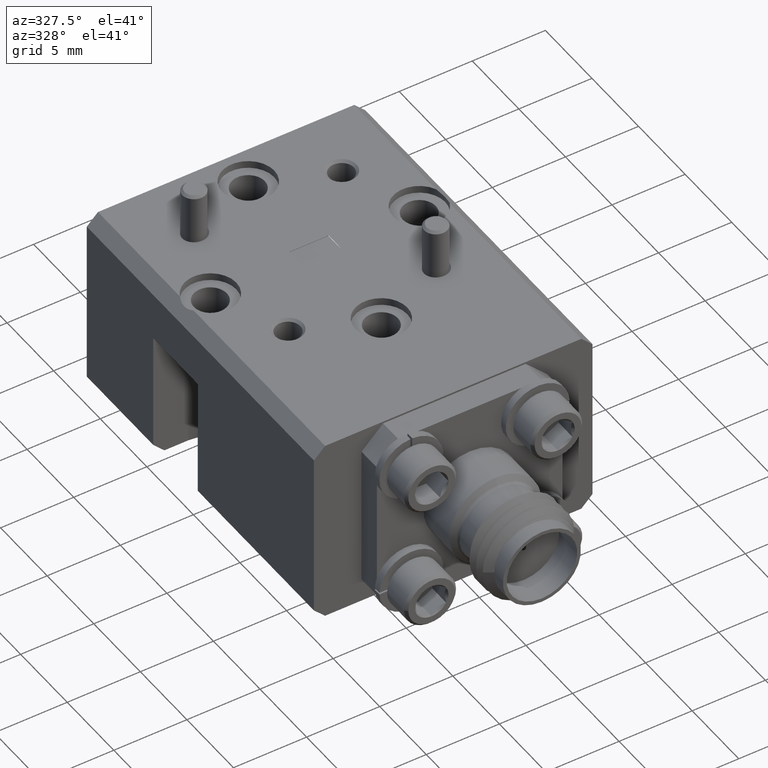
[diagram: clean part render]
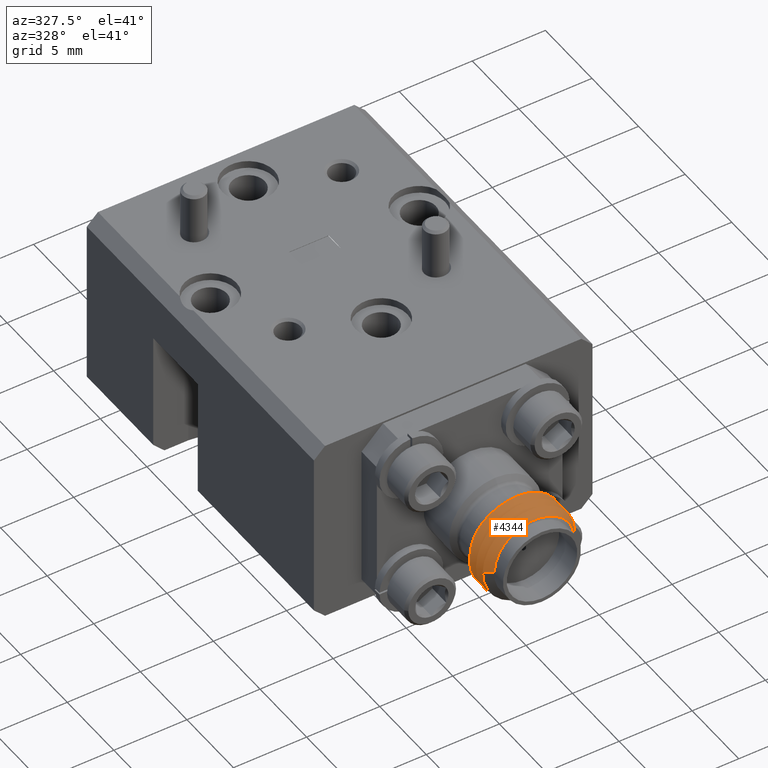
[diagram: same view with one face highlighted and labeled with its STEP entity id]
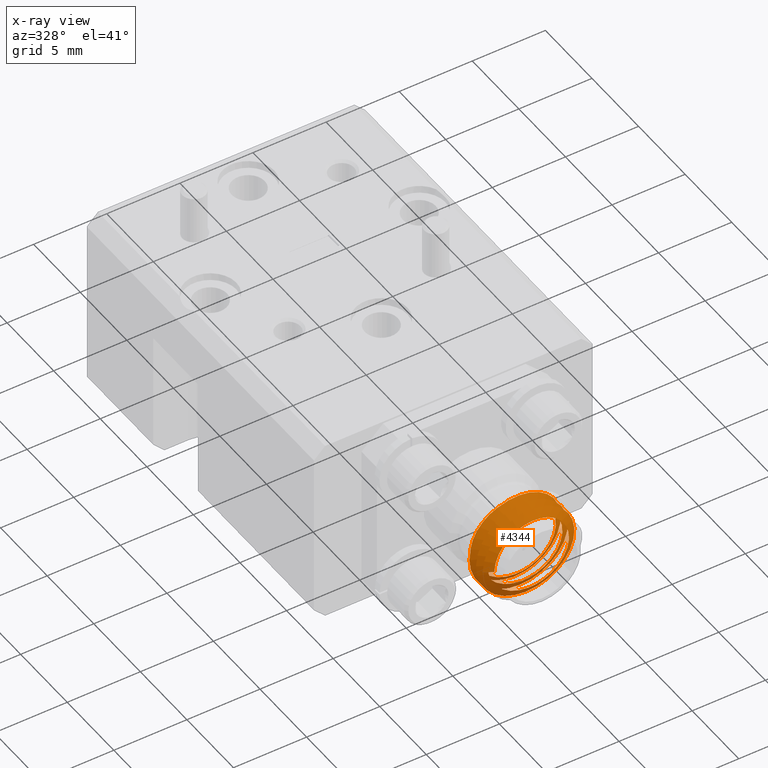
[diagram: x-ray of the same camera — body ghosted, the highlighted face saturated]
A machine part, auxiliary view. The second image highlights one B-rep face of the part: STEP entity #4344.
The next image is the same camera in x-ray: the body ghosted, the highlighted face saturated — about 0% of this face is hidden behind the body in this view.
In plain terms, the highlighted face is a freeform B-spline surface patch.
Its self-contained STEP definition (entity closure, byte-faithful):
#36 = CARTESIAN_POINT ( 'NONE',  ( 0.03312919276062768800, -0.7691203576769958300, 0.1296384106458394500 ) ) ;
#54 = CARTESIAN_POINT ( 'NONE',  ( 0.1248571066239594400, -0.7372423412601347700, 0.02627076726674293400 ) ) ;
#86 = EDGE_CURVE ( 'NONE', #9423, #968, #976, .T. ) ;
#98 =( BOUNDED_CURVE ( )  B_SPLINE_CURVE ( 2, ( #634, #1420, #503, #2881, #5298, #5195, #9181, #7711, #9909 ),
 .UNSPECIFIED., .F., .F. ) 
 B_SPLINE_CURVE_WITH_KNOTS ( ( 3, 2, 2, 2, 3 ),
 ( 0.2248554726565971900, 0.2333333333333333400, 0.2666666666666666600, 0.2999999999999999900, 0.3248554726565971400 ),
 .UNSPECIFIED. ) 
 CURVE ( )  GEOMETRIC_REPRESENTATION_ITEM ( )  RATIONAL_B_SPLINE_CURVE ( ( 0.9491836739122823100, 0.9659254611718747200, 1.000000000000000000, 0.8660254037844387100, 1.000000000000000000, 0.8660254037844387100, 1.000000000000000000, 0.9000999426125641000, 0.9491836739122823100 ) ) 
 REPRESENTATION_ITEM ( '' )  );
#184 = EDGE_CURVE ( 'NONE', #1070, #450, #8906, .T. ) ;
#225 =( BOUNDED_CURVE ( )  B_SPLINE_CURVE ( 2, ( #9086, #3608, #6780, #7443, #9763, #5838, #4363, #9875, #5161 ),
 .UNSPECIFIED., .F., .F. ) 
 B_SPLINE_CURVE_WITH_KNOTS ( ( 3, 2, 2, 2, 3 ),
 ( 0.3248554726565971400, 0.3333333333333333100, 0.3666666666666666400, 0.4000000000000000200, 0.4248554726565971800 ),
 .UNSPECIFIED. ) 
 CURVE ( )  GEOMETRIC_REPRESENTATION_ITEM ( )  RATIONAL_B_SPLINE_CURVE ( ( 0.9491836739122823100, 0.9659254611718746100, 1.000000000000000000, 0.8660254037844387100, 1.000000000000000000, 0.8660254037844387100, 1.000000000000000000, 0.9000999426125641000, 0.9491836739122823100 ) ) 
 REPRESENTATION_ITEM ( '' )  );
#356 = ORIENTED_EDGE ( 'NONE', *, *, #184, .T. ) ;
#378 = CARTESIAN_POINT ( 'NONE',  ( -0.02939350811666438200, -0.7328418619769214700, -0.1092929413743848200 ) ) ;
#444 = CARTESIAN_POINT ( 'NONE',  ( -0.1138557648195761700, -0.7298955529993043100, 0.008651169013799793100 ) ) ;
#450 = VERTEX_POINT ( 'NONE', #8827 ) ;
#485 = CARTESIAN_POINT ( 'NONE',  ( -0.1171121924249693000, -0.8171216360905792000, 0.03738047777547255000 ) ) ;
#503 = CARTESIAN_POINT ( 'NONE',  ( 0.02717629093645239400, -0.8101771916461348900, 0.1074221337329150400 ) ) ;
#514 = CARTESIAN_POINT ( 'NONE',  ( 0.07424599885050108000, -0.7453623768313200100, -0.06824642519806194100 ) ) ;
#541 =( BOUNDED_CURVE ( )  B_SPLINE_CURVE ( 2, ( #7886, #6213, #3917, #2295, #7815 ),
 .UNSPECIFIED., .F., .F. ) 
 B_SPLINE_CURVE_WITH_KNOTS ( ( 3, 2, 3 ),
 ( 0.1767275469719470900, 0.2000000000000000100, 0.2248554726565971900 ),
 .UNSPECIFIED. ) 
 CURVE ( )  GEOMETRIC_REPRESENTATION_ITEM ( )  RATIONAL_B_SPLINE_CURVE ( ( 0.9435358094628345500, 0.9064624750786298700, 1.000000000000000000, 0.9000999426125639900, 0.9491836739122823100 ) ) 
 REPRESENTATION_ITEM ( '' )  );
#554 = CARTESIAN_POINT ( 'NONE',  ( -0.1014222897869530400, -0.8194364509053940800, -0.02117570853485313200 ) ) ;
#614 = CARTESIAN_POINT ( 'NONE',  ( -0.07424599885050080200, -0.7592512657202089600, 0.08024642519806196600 ) ) ;
#634 = CARTESIAN_POINT ( 'NONE',  ( 7.420108249055864700E-017, -0.8112937829805770800, 0.1110000000000000000 ) ) ;
#646 = CARTESIAN_POINT ( 'NONE',  ( -0.1236386008831427800, -0.7783796169362549000, -0.02712848278534478500 ) ) ;
#704 = FACE_OUTER_BOUND ( 'NONE', #7955, .T. ) ;
#718 = CARTESIAN_POINT ( 'NONE',  ( 0.03312919276062764600, -0.8246759132325511800, 0.1296384106458393100 ) ) ;
#736 = CARTESIAN_POINT ( 'NONE',  ( 0.1014222897869533200, -0.7499920064609496600, 0.03317570853485309100 ) ) ;
#741 = CARTESIAN_POINT ( 'NONE',  ( 0.07418421583254591900, -0.7348550753825000600, -0.09178895809404331900 ) ) ;
#745 = CARTESIAN_POINT ( 'NONE',  ( 0.07424599885050108000, -0.7731401546090978000, -0.06824642519806194100 ) ) ;
#753 = CARTESIAN_POINT ( 'NONE',  ( -0.1236386008831427800, -0.7506018391584771100, -0.02712848278534478500 ) ) ;
#774 = CARTESIAN_POINT ( 'NONE',  ( 0.08303529918375010500, -0.7350406885612260600, -0.08484023021629784300 ) ) ;
#813 = CARTESIAN_POINT ( 'NONE',  ( 0.1157437311068600800, -0.7360297553188960300, -0.03957419461717032900 ) ) ;
#828 = CARTESIAN_POINT ( 'NONE',  ( 0.1054730156802199800, -0.7381850454237706100, 0.07852201709357020700 ) ) ;
#968 = VERTEX_POINT ( 'NONE', #1564 ) ;
#976 =( BOUNDED_CURVE ( )  B_SPLINE_CURVE ( 1, ( #9787, #8943 ),
 .UNSPECIFIED., .F., .T. ) 
 B_SPLINE_CURVE_WITH_KNOTS ( ( 2, 2 ),
 ( 0.0000000000000000000, 0.0006745760545211595900 ),
 .UNSPECIFIED. ) 
 CURVE ( )  GEOMETRIC_REPRESENTATION_ITEM ( )  RATIONAL_B_SPLINE_CURVE ( ( 0.9435358094628352200, 0.9435358094628352200 ) ) 
 REPRESENTATION_ITEM ( '' )  );
#1070 = VERTEX_POINT ( 'NONE', #4911 ) ;
#1086 = CARTESIAN_POINT ( 'NONE',  ( -0.1018430765483656100, -0.7310001791428224500, -0.04910181119408804600 ) ) ;
#1142 = CARTESIAN_POINT ( 'NONE',  ( 0.006198600040931802500, -0.7263044659087181100, 0.1134222326565573300 ) ) ;
#1185 = CARTESIAN_POINT ( 'NONE',  ( -2.698221181474860900E-017, -0.7557382274250215000, 0.1109999999999999900 ) ) ;
#1187 = CARTESIAN_POINT ( 'NONE',  ( -0.07553190332919998400, -0.7281169852504061300, 0.08708193823826923500 ) ) ;
#1191 = ORIENTED_EDGE ( 'NONE', *, *, #7850, .F. ) ;
#1213 = CARTESIAN_POINT ( 'NONE',  ( 0.05834331054671429400, -0.7251794569405314300, 0.09409086156688327400 ) ) ;
#1223 = CARTESIAN_POINT ( 'NONE',  ( -0.09086058015134872200, -0.7285369642963722700, 0.07068819780211663100 ) ) ;
#1227 = CARTESIAN_POINT ( 'NONE',  ( -0.03137980527603231900, -0.7569364509053940800, 0.1231123726206513300 ) ) ;
#1240 = CARTESIAN_POINT ( 'NONE',  ( -2.248517651229049400E-017, -0.7696271163139102300, -0.09899999999999997700 ) ) ;
#1263 = CARTESIAN_POINT ( 'NONE',  ( -0.03137980527603231900, -0.8402697842387274500, 0.1231123726206513300 ) ) ;
#1299 = CARTESIAN_POINT ( 'NONE',  ( 0.02717629093645239400, -0.8101771916461348900, 0.1074221337329150400 ) ) ;
#1301 = ORIENTED_EDGE ( 'NONE', *, *, #6525, .T. ) ;
#1313 = CARTESIAN_POINT ( 'NONE',  ( 0.08573238714893710600, -0.7523068212757644300, 0.09173189484517872700 ) ) ;
#1316 = CARTESIAN_POINT ( 'NONE',  ( -2.698221181474860900E-017, -0.7835160052027991800, 0.1109999999999999900 ) ) ;
#1331 = CARTESIAN_POINT ( 'NONE',  ( 0.1064886228565151100, -0.7214667656098323600, 0.01426767895839082400 ) ) ;
#1366 = CARTESIAN_POINT ( 'NONE',  ( -0.02717629093645206700, -0.7962883027572460500, -0.09542213373291502700 ) ) ;
#1386 = EDGE_CURVE ( 'NONE', #8689, #5674, #9345, .T. ) ;
#1400 = CARTESIAN_POINT ( 'NONE',  ( 0.1236386008831430700, -0.8200462836029215300, 0.03912848278534471900 ) ) ;
#1420 = CARTESIAN_POINT ( 'NONE',  ( 0.01382366559595591500, -0.8107050419803288900, 0.1110000000000000000 ) ) ;
#1436 = CARTESIAN_POINT ( 'NONE',  ( -0.1427653393371055000, -0.7760648021214400200, 0.04425429671676652000 ) ) ;
#1465 = CARTESIAN_POINT ( 'NONE',  ( 0.1272702954421694200, -0.7073349570124831700, -0.007648146323326748800 ) ) ;
#1497 = CARTESIAN_POINT ( 'NONE',  ( -0.1045118624291801500, -0.7529166539732918800, -0.09851126228745596400 ) ) ;
#1513 = EDGE_CURVE ( 'NONE', #450, #4178, #4920, .T. ) ;
#1529 = CARTESIAN_POINT ( 'NONE',  ( 0.03312919276062764600, -0.7135648021214400200, 0.1296384106458393100 ) ) ;
#1536 = CARTESIAN_POINT ( 'NONE',  ( -0.1045118624291802900, -0.7529166539732921000, -0.09851126228745610300 ) ) ;
#1564 = CARTESIAN_POINT ( 'NONE',  ( -0.1278387922965798000, -0.8048149545762241000, 0.01242208565435611400 ) ) ;
#1568 = CARTESIAN_POINT ( 'NONE',  ( -0.03825347690792520200, -0.7714351724918104800, 0.1487655590042227800 ) ) ;
#1734 = ORIENTED_EDGE ( 'NONE', *, *, #4513, .F. ) ;
#1853 = CARTESIAN_POINT ( 'NONE',  ( -0.01382366559595572500, -0.7690383753136620400, -0.09899999999999993500 ) ) ;
#1857 = CARTESIAN_POINT ( 'NONE',  ( 0.01382366559595586200, -0.7273717086469953000, 0.1109999999999999900 ) ) ;
#1894 = CARTESIAN_POINT ( 'NONE',  ( -0.1014222897869530400, -0.7638808953498386100, -0.02117570853485312800 ) ) ;
#1900 =( BOUNDED_CURVE ( )  B_SPLINE_CURVE ( 2, ( #3070, #6201, #8561, #6267, #4619, #7003, #9407, #2281, #6339, #4654, #8592, #3864, #3171, #10180, #3829, #1568, #36, #2246, #5452, #5545, #5516, #7072, #6231, #1536, #7033, #2313, #2344, #6304, #3106, #7869, #828 ),
 .UNSPECIFIED., .F., .T. ) 
 B_SPLINE_CURVE_WITH_KNOTS ( ( 3, 2, 2, 2, 2, 2, 2, 2, 2, 2, 2, 2, 2, 2, 2, 3 ),
 ( 0.2011687592148475600, 0.2276597651715039400, 0.2656030593667546600, 0.3035463535620053800, 0.3414896477572561000, 0.3794329419525067600, 0.4173762361477574800, 0.4553195303430082600, 0.4932628245382589800, 0.5312061187335097600, 0.5691494129287604200, 0.6070927071240110900, 0.6450360013192617500, 0.6829792955145125300, 0.7209225897097633100, 0.7463925776211358700 ),
 .UNSPECIFIED. ) 
 CURVE ( )  GEOMETRIC_REPRESENTATION_ITEM ( )  RATIONAL_B_SPLINE_CURVE ( ( 0.9435358094628330000, 0.9064624750786318700, 1.000000000000000000, 0.8660254037844387100, 1.000000000000000000, 0.8660254037844387100, 1.000000000000000000, 0.8660254037844387100, 1.000000000000000000, 0.8660254037844387100, 1.000000000000000000, 0.8660254037844387100, 1.000000000000000000, 0.8660254037844387100, 1.000000000000000000, 0.8660254037844387100, 1.000000000000000000, 0.8660254037844387100, 1.000000000000000000, 0.8660254037844387100, 1.000000000000000000, 0.8660254037844387100, 1.000000000000000000, 0.8660254037844387100, 1.000000000000000000, 0.8660254037844387100, 1.000000000000000000, 0.8660254037844387100, 1.000000000000000000, 0.9100676043444722000, 0.9408720650304152100 ) ) 
 REPRESENTATION_ITEM ( '' )  );
#1919 = CARTESIAN_POINT ( 'NONE',  ( 0.04212905255298550500, -0.7255736212046120000, 0.1036356924667437800 ) ) ;
#1928 = CARTESIAN_POINT ( 'NONE',  ( 5.630827842917322900E-013, -0.7333776638842842700, -0.1136733709222306800 ) ) ;
#1953 = EDGE_CURVE ( 'NONE', #8023, #8689, #225, .T. ) ;
#1962 = CARTESIAN_POINT ( 'NONE',  ( -0.05062318909267560900, -0.7275330866596323400, 0.1034348513021584200 ) ) ;
#2000 = CARTESIAN_POINT ( 'NONE',  ( 0.08573238714893709200, -0.7523068212757644300, 0.09173189484517871300 ) ) ;
#2015 = EDGE_CURVE ( 'NONE', #9423, #8202, #541, .T. ) ;
#2035 = CARTESIAN_POINT ( 'NONE',  ( 0.03137980527603263800, -0.7986031175720608200, -0.1111123726206513000 ) ) ;
#2065 = CARTESIAN_POINT ( 'NONE',  ( -0.08573238714893680100, -0.7384179323868755900, -0.07973189484517873000 ) ) ;
#2140 = CARTESIAN_POINT ( 'NONE',  ( 0.02717629093645239400, -0.7823994138683571000, 0.1074221337329150400 ) ) ;
#2155 = B_SPLINE_CURVE_WITH_KNOTS ( 'NONE', 3,
 ( #2814, #1142, #9834, #5907, #2744, #1919, #6745, #1213, #5942, #6711 ),
 .UNSPECIFIED., .F., .F.,
 ( 4, 2, 2, 2, 4 ),
 ( 0.01584325104450802500, 0.01631522288888697200, 0.01678719473326591900, 0.01725916657764486900, 0.01773113842202381600 ),
 .UNSPECIFIED. ) ;
#2170 = CARTESIAN_POINT ( 'NONE',  ( 0.1427653393371057500, -0.7621759132325511800, -0.03225429671676653700 ) ) ;
#2197 = CARTESIAN_POINT ( 'NONE',  ( -0.1171121924249693000, -0.7337883027572459400, 0.03738047777547255000 ) ) ;
#2200 = CARTESIAN_POINT ( 'NONE',  ( -0.1427653393371055000, -0.7482870243436623400, 0.04425429671676652000 ) ) ;
#2246 = CARTESIAN_POINT ( 'NONE',  ( 0.1045118624291805800, -0.7668055428621809400, 0.1105112622874561300 ) ) ;
#2262 = CARTESIAN_POINT ( 'NONE',  ( 0.04413047910349584400, -0.7342327314604387700, -0.1069712945133895200 ) ) ;
#2275 = CARTESIAN_POINT ( 'NONE',  ( 0.03312919276062764600, -0.7691203576769956000, 0.1296384106458393100 ) ) ;
#2281 = CARTESIAN_POINT ( 'NONE',  ( 0.1427653393371059200, -0.7899536910103292000, -0.03225429671676657800 ) ) ;
#2295 = CARTESIAN_POINT ( 'NONE',  ( -0.04349224745033781300, -0.8131460897431511700, 0.1109999999999999700 ) ) ;
#2306 = CARTESIAN_POINT ( 'NONE',  ( -0.09050940812251530300, -0.7737499873066252500, 0.09650992786049460100 ) ) ;
#2313 = CARTESIAN_POINT ( 'NONE',  ( -0.1427653393371056700, -0.7482870243436624500, 0.04425429671676656800 ) ) ;
#2338 =( BOUNDED_CURVE ( )  B_SPLINE_CURVE ( 2, ( #2687, #1857, #5097, #2756, #4989 ),
 .UNSPECIFIED., .F., .T. ) 
 B_SPLINE_CURVE_WITH_KNOTS ( ( 3, 2, 3 ),
 ( 0.8248554726565972000, 0.8333333333333333700, 0.8474635842303774900 ),
 .UNSPECIFIED. ) 
 CURVE ( )  GEOMETRIC_REPRESENTATION_ITEM ( )  RATIONAL_B_SPLINE_CURVE ( ( 0.9491836739122823100, 0.9659254611718746100, 1.000000000000000000, 0.9432071602493181700, 0.9345641449886015200 ) ) 
 REPRESENTATION_ITEM ( '' )  );
#2344 = CARTESIAN_POINT ( 'NONE',  ( -0.09050940812251541400, -0.7459722095288475700, 0.09650992786049471300 ) ) ;
#2362 = CARTESIAN_POINT ( 'NONE',  ( 0.1254668339449944700, -0.7371481022586738900, 0.02071807716964917100 ) ) ;
#2398 = CARTESIAN_POINT ( 'NONE',  ( 0.1197137497613994900, -0.7362375630011227500, -0.02909731937619747200 ) ) ;
#2517 = CARTESIAN_POINT ( 'NONE',  ( -0.1048677593057881900, -0.8180940107675855900, 0.01126811713833744000 ) ) ;
#2616 = CARTESIAN_POINT ( 'NONE',  ( -0.03653210739300280500, -0.7327182347185875500, -0.1070036101386707400 ) ) ;
#2686 = CARTESIAN_POINT ( 'NONE',  ( -0.01477314057628331300, -0.7331042310891764400, -0.1125171968135008800 ) ) ;
#2687 = CARTESIAN_POINT ( 'NONE',  ( -2.698221181474860900E-017, -0.7279604496472434900, 0.1109999999999999900 ) ) ;
#2693 = B_SPLINE_CURVE_WITH_KNOTS ( 'NONE', 3,
 ( #9422, #7817, #8574, #3153, #4599, #54, #2362, #5530, #6987, #7887, #2398, #813, #3946, #9352, #3812, #774, #741, #4671, #6281, #2262, #3048, #4632, #6250, #10165 ),
 .UNSPECIFIED., .F., .F.,
 ( 4, 2, 2, 2, 2, 2, 2, 2, 2, 2, 2, 4 ),
 ( 0.0000000000000000000, 0.0008512232122835501300, 0.001276834818425324600, 0.001702446424567099400, 0.002553669636850648800, 0.002979281242992423300, 0.003404892849134197900, 0.004256116061417747500, 0.005107339273701295800, 0.005532950879843069900, 0.005958562485984845000, 0.006809785698268393300 ),
 .UNSPECIFIED. ) ;
#2744 = CARTESIAN_POINT ( 'NONE',  ( 0.03062610827314244200, -0.7258180924131029100, 0.1082727103393665600 ) ) ;
#2755 = CARTESIAN_POINT ( 'NONE',  ( -0.02991030664485935100, -0.7270671036047320300, 0.1115956208989300200 ) ) ;
#2756 = CARTESIAN_POINT ( 'NONE',  ( 0.04996746963860783400, -0.7259428870814648200, 0.1013151856694329300 ) ) ;
#2791 = CARTESIAN_POINT ( 'NONE',  ( 0.1014222897869533200, -0.8333253397942829200, 0.03317570853485308400 ) ) ;
#2805 = CARTESIAN_POINT ( 'NONE',  ( 0.01382366559595586200, -0.7551494864247730900, 0.1109999999999999900 ) ) ;
#2814 = CARTESIAN_POINT ( 'NONE',  ( -1.798814120983241900E-017, -0.7264332194398293000, 0.1136452403140952700 ) ) ;
#2824 = CARTESIAN_POINT ( 'NONE',  ( -0.1137263042340964400, -0.7301848014875158600, -0.006272346477394806700 ) ) ;
#2829 = CARTESIAN_POINT ( 'NONE',  ( -0.03137980527603231900, -0.8124920064609495500, 0.1231123726206513300 ) ) ;
#2862 = CARTESIAN_POINT ( 'NONE',  ( -0.1014222897869530400, -0.7361031175720607100, -0.02117570853485312800 ) ) ;
#2875 = CARTESIAN_POINT ( 'NONE',  ( 0.02717629093645239400, -0.7546216360905793100, 0.1074221337329150400 ) ) ;
#2881 = CARTESIAN_POINT ( 'NONE',  ( 0.08573238714893710600, -0.8078623768313200100, 0.09173189484517872700 ) ) ;
#2893 = CARTESIAN_POINT ( 'NONE',  ( 0.1014222897869533200, -0.7777697842387274500, 0.03317570853485309100 ) ) ;
#2922 = CARTESIAN_POINT ( 'NONE',  ( -0.1014222897869530400, -0.7916586731276164000, -0.02117570853485313200 ) ) ;
#2954 = CARTESIAN_POINT ( 'NONE',  ( -0.03825347690792515300, -0.8269907280473660600, 0.1487655590042225600 ) ) ;
#2987 = CARTESIAN_POINT ( 'NONE',  ( -0.03825347690792515300, -0.7436573947140326900, 0.1487655590042225600 ) ) ;
#3013 = CARTESIAN_POINT ( 'NONE',  ( -2.248517651229049400E-017, -0.7696271163139103400, -0.09899999999999997700 ) ) ;
#3021 = CARTESIAN_POINT ( 'NONE',  ( 0.1236386008831430700, -0.7367129502695881600, 0.03912848278534473300 ) ) ;
#3048 = CARTESIAN_POINT ( 'NONE',  ( 0.03881515699902455400, -0.7341262702921078600, -0.1087095794947241800 ) ) ;
#3060 = CARTESIAN_POINT ( 'NONE',  ( 0.09050940812251559400, -0.7598610984177364100, -0.08450992786049453500 ) ) ;
#3070 = CARTESIAN_POINT ( 'NONE',  ( -0.1278387922965798000, -0.8048149545762241000, 0.01242208565435611400 ) ) ;
#3075 = ORIENTED_EDGE ( 'NONE', *, *, #1513, .T. ) ;
#3097 = CARTESIAN_POINT ( 'NONE',  ( -0.09050940812251530300, -0.8015277650844031500, 0.09650992786049460100 ) ) ;
#3106 = CARTESIAN_POINT ( 'NONE',  ( 0.03312919276062768800, -0.7413425798992179200, 0.1296384106458394500 ) ) ;
#3153 = CARTESIAN_POINT ( 'NONE',  ( 0.1214949327643480000, -0.7375142744879027400, 0.04285566844062353000 ) ) ;
#3171 = CARTESIAN_POINT ( 'NONE',  ( -0.1236386008831429400, -0.7783796169362549000, -0.02712848278534482600 ) ) ;
#3263 = CARTESIAN_POINT ( 'NONE',  ( -2.248517651229049400E-017, -0.7696271163139103400, -0.09899999999999997700 ) ) ;
#3405 =( BOUNDED_CURVE ( )  B_SPLINE_CURVE ( 2, ( #3263, #1853, #8269, #10033, #1894, #5092, #5309, #3545, #1185 ),
 .UNSPECIFIED., .F., .F. ) 
 B_SPLINE_CURVE_WITH_KNOTS ( ( 3, 2, 2, 2, 3 ),
 ( 0.5248554726565972700, 0.5333333333333333300, 0.5666666666666666500, 0.5999999999999999800, 0.6248554726565971300 ),
 .UNSPECIFIED. ) 
 CURVE ( )  GEOMETRIC_REPRESENTATION_ITEM ( )  RATIONAL_B_SPLINE_CURVE ( ( 0.9491836739122827500, 0.9659254611718750500, 1.000000000000000000, 0.8660254037844387100, 1.000000000000000000, 0.8660254037844387100, 1.000000000000000000, 0.9000999426125641000, 0.9491836739122823100 ) ) 
 REPRESENTATION_ITEM ( '' )  );
#3501 = VERTEX_POINT ( 'NONE', #10148 ) ;
#3545 = CARTESIAN_POINT ( 'NONE',  ( -0.04349224745033786200, -0.7575905341875954800, 0.1109999999999999500 ) ) ;
#3581 = CARTESIAN_POINT ( 'NONE',  ( -0.09907273910440894700, -0.7288317759131298600, 0.05833274134691875100 ) ) ;
#3585 = CARTESIAN_POINT ( 'NONE',  ( -0.08573238714893680100, -0.7939734879424311700, -0.07973189484517873000 ) ) ;
#3608 = CARTESIAN_POINT ( 'NONE',  ( -0.01382366559595554200, -0.7968161530914398300, -0.09899999999999997700 ) ) ;
#3618 = CARTESIAN_POINT ( 'NONE',  ( -1.798814120983241900E-017, -0.7264332194398293000, 0.1136452403140952700 ) ) ;
#3621 = CARTESIAN_POINT ( 'NONE',  ( 0.07424599885050108000, -0.7731401546090978000, -0.06824642519806194100 ) ) ;
#3651 = CARTESIAN_POINT ( 'NONE',  ( -2.698221181474860900E-017, -0.7279604496472434900, 0.1109999999999999900 ) ) ;
#3655 = CARTESIAN_POINT ( 'NONE',  ( -0.03137980527603231900, -0.7291586731276161700, 0.1231123726206513300 ) ) ;
#3727 =( BOUNDED_SURFACE ( )  B_SPLINE_SURFACE ( 1, 2, ( 
 ( #6859, #1263, #6032, #7530, #2791, #5280, #8314, #6757, #8346, #9224, #554, #485, #6723, #2829, #1299, #9926, #6822, #7621, #5995, #2035, #1366, #3585, #2922, #6061, #4507, #9098, #2140, #10035, #2893, #7654, #3621, #5311, #9162, #9122, #7595, #8411, #614, #1227, #5213, #2000, #4371, #9888, #514, #5175, #6791, #2065, #2862, #5247, #8379, #3655, #4435, #9195, #9960, #1331, #4468 ),
 ( #9995, #2954, #718, #9363, #1400, #7723, #10209, #4645, #6193, #8586, #7028, #9257, #3097, #3893, #6961, #6925, #5413, #10174, #5343, #6892, #5446, #10136, #646, #1436, #2306, #6096, #2275, #9399, #6130, #2170, #3060, #8516, #7761, #1497, #753, #2200, #9296, #2987, #7687, #3788, #3021, #3824, #8615, #5484, #6223, #4545, #8482, #7828, #8550, #4577, #1529, #10104, #3756, #10070, #1465 ) ),
 .UNSPECIFIED., .F., .F., .F. ) 
 B_SPLINE_SURFACE_WITH_KNOTS ( ( 2, 2 ),
 ( 3, 2, 2, 2, 2, 2, 2, 2, 2, 2, 2, 2, 2, 2, 2, 2, 2, 2, 2, 2, 2, 2, 2, 2, 2, 2, 2, 3 ),
 ( 0.0000000000000000000, 1.000000000000000000 ),
 ( 0.0000000000000000000, 0.03333333333333333300, 0.06666666666666666600, 0.1000000000000000100, 0.1333333333333333300, 0.1666666666666666600, 0.2000000000000000100, 0.2333333333333333400, 0.2666666666666666600, 0.2999999999999999900, 0.3333333333333333100, 0.3666666666666666400, 0.4000000000000000200, 0.4333333333333333500, 0.4666666666666666700, 0.5000000000000000000, 0.5333333333333333300, 0.5666666666666666500, 0.5999999999999999800, 0.6333333333333333000, 0.6666666666666666300, 0.6999999999999999600, 0.7333333333333332800, 0.7666666666666667200, 0.8000000000000000400, 0.8333333333333333700, 0.8666666666666667000, 0.8785039370014849900 ),
 .UNSPECIFIED. ) 
 GEOMETRIC_REPRESENTATION_ITEM ( )  RATIONAL_B_SPLINE_SURFACE ( (
 ( 1.000000000000000000, 0.8660254037844387100, 1.000000000000000000, 0.8660254037844387100, 1.000000000000000000, 0.8660254037844387100, 1.000000000000000000, 0.8660254037844387100, 1.000000000000000000, 0.8660254037844387100, 1.000000000000000000, 0.8660254037844387100, 1.000000000000000000, 0.8660254037844387100, 1.000000000000000000, 0.8660254037844387100, 1.000000000000000000, 0.8660254037844387100, 1.000000000000000000, 0.8660254037844387100, 1.000000000000000000, 0.8660254037844387100, 1.000000000000000000, 0.8660254037844387100, 1.000000000000000000, 0.8660254037844387100, 1.000000000000000000, 0.8660254037844387100, 1.000000000000000000, 0.8660254037844387100, 1.000000000000000000, 0.8660254037844387100, 1.000000000000000000, 0.8660254037844387100, 1.000000000000000000, 0.8660254037844387100, 1.000000000000000000, 0.8660254037844387100, 1.000000000000000000, 0.8660254037844387100, 1.000000000000000000, 0.8660254037844387100, 1.000000000000000000, 0.8660254037844387100, 1.000000000000000000, 0.8660254037844387100, 1.000000000000000000, 0.8660254037844387100, 1.000000000000000000, 0.8660254037844387100, 1.000000000000000000, 0.8660254037844387100, 1.000000000000000000, 0.9524231945979483300, 0.9386371596285643100),
 ( 1.000000000000000000, 0.8660254037844387100, 1.000000000000000000, 0.8660254037844387100, 1.000000000000000000, 0.8660254037844387100, 1.000000000000000000, 0.8660254037844387100, 1.000000000000000000, 0.8660254037844387100, 1.000000000000000000, 0.8660254037844387100, 1.000000000000000000, 0.8660254037844387100, 1.000000000000000000, 0.8660254037844387100, 1.000000000000000000, 0.8660254037844387100, 1.000000000000000000, 0.8660254037844387100, 1.000000000000000000, 0.8660254037844387100, 1.000000000000000000, 0.8660254037844387100, 1.000000000000000000, 0.8660254037844387100, 1.000000000000000000, 0.8660254037844387100, 1.000000000000000000, 0.8660254037844387100, 1.000000000000000000, 0.8660254037844387100, 1.000000000000000000, 0.8660254037844387100, 1.000000000000000000, 0.8660254037844387100, 1.000000000000000000, 0.8660254037844387100, 1.000000000000000000, 0.8660254037844387100, 1.000000000000000000, 0.8660254037844387100, 1.000000000000000000, 0.8660254037844387100, 1.000000000000000000, 0.8660254037844387100, 1.000000000000000000, 0.8660254037844387100, 1.000000000000000000, 0.8660254037844387100, 1.000000000000000000, 0.8660254037844387100, 1.000000000000000000, 0.9524231945979483300, 0.9386371596285643100) ) ) 
 REPRESENTATION_ITEM ( '' )  SURFACE ( )  );
#3756 = CARTESIAN_POINT ( 'NONE',  ( 0.1236386008831430700, -0.7089351724918103700, 0.03912848278534473300 ) ) ;
#3788 = CARTESIAN_POINT ( 'NONE',  ( 0.1045118624291804400, -0.7390277650844030400, 0.1105112622874559900 ) ) ;
#3812 = CARTESIAN_POINT ( 'NONE',  ( 0.09871284395745273700, -0.7354185025851821500, -0.06858825471580955200 ) ) ;
#3824 = CARTESIAN_POINT ( 'NONE',  ( 0.1427653393371057500, -0.7343981354547732800, -0.03225429671676653700 ) ) ;
#3829 = CARTESIAN_POINT ( 'NONE',  ( -0.09050940812251541400, -0.7737499873066254800, 0.09650992786049471300 ) ) ;
#3848 = CARTESIAN_POINT ( 'NONE',  ( 0.08573238714893710600, -0.7800845990535423300, 0.09173189484517872700 ) ) ;
#3864 = CARTESIAN_POINT ( 'NONE',  ( -0.1045118624291802900, -0.7806944317510698900, -0.09851126228745610300 ) ) ;
#3885 = CARTESIAN_POINT ( 'NONE',  ( 0.1014222897869533200, -0.7777697842387274500, 0.03317570853485309100 ) ) ;
#3893 = CARTESIAN_POINT ( 'NONE',  ( -0.03825347690792515300, -0.7992129502695882700, 0.1487655590042225600 ) ) ;
#3917 = CARTESIAN_POINT ( 'NONE',  ( -0.07424599885050078800, -0.8148068212757645400, 0.08024642519806196600 ) ) ;
#3946 = CARTESIAN_POINT ( 'NONE',  ( 0.1133740508772751200, -0.7359247518586518000, -0.04474501894314325500 ) ) ;
#4031 = ORIENTED_EDGE ( 'NONE', *, *, #1953, .T. ) ;
#4178 = VERTEX_POINT ( 'NONE', #9672 ) ;
#4267 = CARTESIAN_POINT ( 'NONE',  ( -0.09002257710970254500, -0.7314372009825097500, -0.06802788012895025200 ) ) ;
#4334 = CARTESIAN_POINT ( 'NONE',  ( -0.1129281387864931700, -0.7303227858104472900, -0.01363728499388692400 ) ) ;
#4344 = ADVANCED_FACE ( 'NONE', ( #704 ), #3727, .F. ) ;
#4354 = CARTESIAN_POINT ( 'NONE',  ( 0.07424599885050108000, -0.7453623768313200100, -0.06824642519806194100 ) ) ;
#4363 = CARTESIAN_POINT ( 'NONE',  ( -0.07424599885050080200, -0.7870290434979867500, 0.08024642519806196600 ) ) ;
#4371 = CARTESIAN_POINT ( 'NONE',  ( 0.1014222897869533200, -0.7499920064609496600, 0.03317570853485309100 ) ) ;
#4402 = CARTESIAN_POINT ( 'NONE',  ( -0.1131672855385319800, -0.7297449665662820700, 0.01616809506296856800 ) ) ;
#4435 = CARTESIAN_POINT ( 'NONE',  ( 0.02717629093645239400, -0.7268438583128015200, 0.1074221337329150400 ) ) ;
#4468 = CARTESIAN_POINT ( 'NONE',  ( 0.1044014142299046200, -0.7206140132038446600, -0.005195745030853978100 ) ) ;
#4507 = CARTESIAN_POINT ( 'NONE',  ( -0.07424599885050080200, -0.7870290434979867500, 0.08024642519806196600 ) ) ;
#4513 = EDGE_CURVE ( 'NONE', #8181, #3501, #2155, .T. ) ;
#4542 = CARTESIAN_POINT ( 'NONE',  ( -0.04349224745033786200, -0.7298127564098179100, 0.1109999999999999500 ) ) ;
#4545 = CARTESIAN_POINT ( 'NONE',  ( -0.1045118624291801500, -0.7251388761955140900, -0.09851126228745596400 ) ) ;
#4571 = CARTESIAN_POINT ( 'NONE',  ( 7.420108249055864700E-017, -0.8112937829805770800, 0.1110000000000000000 ) ) ;
#4577 = CARTESIAN_POINT ( 'NONE',  ( -0.03825347690792515300, -0.7158796169362547900, 0.1487655590042225600 ) ) ;
#4599 = CARTESIAN_POINT ( 'NONE',  ( 0.1228779715944307000, -0.7374258007081940800, 0.03733074047839254200 ) ) ;
#4619 = CARTESIAN_POINT ( 'NONE',  ( 0.03312919276062768800, -0.7968981354547735000, 0.1296384106458394500 ) ) ;
#4632 = CARTESIAN_POINT ( 'NONE',  ( 0.02256696896580985200, -0.7338053620831694900, -0.1128063989163975300 ) ) ;
#4645 = CARTESIAN_POINT ( 'NONE',  ( 0.03825347690792547900, -0.8131018391584770000, -0.1367655590042225200 ) ) ;
#4654 = CARTESIAN_POINT ( 'NONE',  ( 0.03825347690792552800, -0.7853240613806993200, -0.1367655590042227100 ) ) ;
#4671 = CARTESIAN_POINT ( 'NONE',  ( 0.05966173821653060500, -0.7345501136331007400, -0.1002246562618945400 ) ) ;
#4703 = CARTESIAN_POINT ( 'NONE',  ( 0.02717629093645239400, -0.7823994138683571000, 0.1074221337329150400 ) ) ;
#4911 = CARTESIAN_POINT ( 'NONE',  ( -2.698221181474860900E-017, -0.7557382274250215000, 0.1109999999999999900 ) ) ;
#4920 =( BOUNDED_CURVE ( )  B_SPLINE_CURVE ( 2, ( #6028, #9922, #9958, #6855, #7652, #2197, #7719, #4542, #3651 ),
 .UNSPECIFIED., .F., .F. ) 
 B_SPLINE_CURVE_WITH_KNOTS ( ( 3, 2, 2, 2, 3 ),
 ( 0.7248554726565971100, 0.7333333333333332800, 0.7666666666666667200, 0.8000000000000000400, 0.8248554726565972000 ),
 .UNSPECIFIED. ) 
 CURVE ( )  GEOMETRIC_REPRESENTATION_ITEM ( )  RATIONAL_B_SPLINE_CURVE ( ( 0.9491836739122823100, 0.9659254611718746100, 1.000000000000000000, 0.8660254037844387100, 1.000000000000000000, 0.8660254037844387100, 1.000000000000000000, 0.9000999426125641000, 0.9491836739122823100 ) ) 
 REPRESENTATION_ITEM ( '' )  );
#4955 = CARTESIAN_POINT ( 'NONE',  ( -0.09832701126092578700, -0.7311435613984749200, -0.05562739892807481300 ) ) ;
#4989 = CARTESIAN_POINT ( 'NONE',  ( 0.06795478656778343500, -0.7249059892324151200, 0.08604465617720535900 ) ) ;
#5024 = CARTESIAN_POINT ( 'NONE',  ( -0.1098859298797514500, -0.7305861182671206100, -0.02817628620863986100 ) ) ;
#5092 = CARTESIAN_POINT ( 'NONE',  ( -0.1171121924249693000, -0.7615660805350237300, 0.03738047777547255000 ) ) ;
#5097 = CARTESIAN_POINT ( 'NONE',  ( 0.02717629093645239400, -0.7268438583128015200, 0.1074221337329150400 ) ) ;
#5133 = CARTESIAN_POINT ( 'NONE',  ( -0.08607145452579328900, -0.7283913343267010000, 0.07654328049529912600 ) ) ;
#5161 = CARTESIAN_POINT ( 'NONE',  ( -2.698221181474860900E-017, -0.7835160052027991800, 0.1109999999999999900 ) ) ;
#5175 = CARTESIAN_POINT ( 'NONE',  ( 0.03137980527603263800, -0.7430475620165052400, -0.1111123726206513000 ) ) ;
#5195 = CARTESIAN_POINT ( 'NONE',  ( 0.1171121924249695500, -0.8032327472016903600, -0.02538047777547255300 ) ) ;
#5213 = CARTESIAN_POINT ( 'NONE',  ( 0.02717629093645239400, -0.7546216360905793100, 0.1074221337329150400 ) ) ;
#5247 = CARTESIAN_POINT ( 'NONE',  ( -0.1171121924249693000, -0.7337883027572459400, 0.03738047777547255000 ) ) ;
#5280 = CARTESIAN_POINT ( 'NONE',  ( 0.1171121924249695500, -0.8310105249794681500, -0.02538047777547255600 ) ) ;
#5298 = CARTESIAN_POINT ( 'NONE',  ( 0.1014222897869533200, -0.8055475620165052400, 0.03317570853485308400 ) ) ;
#5309 = CARTESIAN_POINT ( 'NONE',  ( -0.07424599885050080200, -0.7592512657202089600, 0.08024642519806196600 ) ) ;
#5311 = CARTESIAN_POINT ( 'NONE',  ( 0.03137980527603263800, -0.7708253397942831400, -0.1111123726206513000 ) ) ;
#5336 = EDGE_CURVE ( 'NONE', #6087, #8187, #2693, .T. ) ;
#5340 = CARTESIAN_POINT ( 'NONE',  ( 5.630827842917322900E-013, -0.7333776638842842700, -0.1136733709222306800 ) ) ;
#5343 = CARTESIAN_POINT ( 'NONE',  ( 0.09050940812251559400, -0.7876388761955142000, -0.08450992786049453500 ) ) ;
#5413 = CARTESIAN_POINT ( 'NONE',  ( 0.1236386008831430700, -0.7922685058251438500, 0.03912848278534471900 ) ) ;
#5446 = CARTESIAN_POINT ( 'NONE',  ( -0.03312919276062729200, -0.7830092465658845500, -0.1176384106458392700 ) ) ;
#5452 = CARTESIAN_POINT ( 'NONE',  ( 0.1236386008831432300, -0.7644907280473661700, 0.03912848278534477400 ) ) ;
#5484 = CARTESIAN_POINT ( 'NONE',  ( 0.03825347690792547900, -0.7297685058251437400, -0.1367655590042225200 ) ) ;
#5516 = CARTESIAN_POINT ( 'NONE',  ( 0.09050940812251570500, -0.7598610984177365200, -0.08450992786049466000 ) ) ;
#5530 = CARTESIAN_POINT ( 'NONE',  ( 0.1261791963993928700, -0.7368578140867059200, 0.003993256611270358700 ) ) ;
#5545 = CARTESIAN_POINT ( 'NONE',  ( 0.1427653393371059200, -0.7621759132325511800, -0.03225429671676657800 ) ) ;
#5674 = VERTEX_POINT ( 'NONE', #1240 ) ;
#5709 = ORIENTED_EDGE ( 'NONE', *, *, #8078, .T. ) ;
#5838 = CARTESIAN_POINT ( 'NONE',  ( -0.1171121924249693000, -0.7893438583128015200, 0.03738047777547255000 ) ) ;
#5896 = ORIENTED_EDGE ( 'NONE', *, *, #7709, .F. ) ;
#5907 = CARTESIAN_POINT ( 'NONE',  ( 0.02468675410374823000, -0.7259316906949931900, 0.1100716183720609500 ) ) ;
#5942 = CARTESIAN_POINT ( 'NONE',  ( 0.06331633943365475000, -0.7250441471406687800, 0.09029641807485591600 ) ) ;
#5995 = CARTESIAN_POINT ( 'NONE',  ( 0.07424599885050108000, -0.8009179323868757000, -0.06824642519806194100 ) ) ;
#6028 = CARTESIAN_POINT ( 'NONE',  ( 3.417746829868157000E-016, -0.7418493385361324400, -0.09899999999999997700 ) ) ;
#6032 = CARTESIAN_POINT ( 'NONE',  ( 0.02717629093645239400, -0.8379549694239125700, 0.1074221337329150400 ) ) ;
#6061 = CARTESIAN_POINT ( 'NONE',  ( -0.1171121924249693000, -0.7893438583128015200, 0.03738047777547255000 ) ) ;
#6087 = VERTEX_POINT ( 'NONE', #9427 ) ;
#6096 = CARTESIAN_POINT ( 'NONE',  ( -0.03825347690792515300, -0.7714351724918103700, 0.1487655590042225600 ) ) ;
#6130 = CARTESIAN_POINT ( 'NONE',  ( 0.1236386008831430700, -0.7644907280473660600, 0.03912848278534473300 ) ) ;
#6193 = CARTESIAN_POINT ( 'NONE',  ( -0.03312919276062729200, -0.8107870243436622300, -0.1176384106458392700 ) ) ;
#6201 = CARTESIAN_POINT ( 'NONE',  ( -0.1253655897508236500, -0.8030718119274254900, 0.06165394638792433300 ) ) ;
#6213 = CARTESIAN_POINT ( 'NONE',  ( -0.1028389603424730600, -0.8163508681187871000, 0.05165362789634346500 ) ) ;
#6218 = CARTESIAN_POINT ( 'NONE',  ( 0.04349224745033801500, -0.7714794230764842100, -0.09900000000000004600 ) ) ;
#6223 = CARTESIAN_POINT ( 'NONE',  ( -0.03312919276062729200, -0.7274536910103289700, -0.1176384106458392700 ) ) ;
#6231 = CARTESIAN_POINT ( 'NONE',  ( -0.03312919276062734100, -0.7552314687881067600, -0.1176384106458394200 ) ) ;
#6250 = CARTESIAN_POINT ( 'NONE',  ( 0.01117425433748174500, -0.7335864402788039300, -0.1140349822449061900 ) ) ;
#6267 = CARTESIAN_POINT ( 'NONE',  ( -0.03825347690792520200, -0.7992129502695883800, 0.1487655590042227800 ) ) ;
#6281 = CARTESIAN_POINT ( 'NONE',  ( 0.05455516924972381900, -0.7344446640125913400, -0.1027328240923284900 ) ) ;
#6304 = CARTESIAN_POINT ( 'NONE',  ( -0.03825347690792520200, -0.7436573947140328000, 0.1487655590042227800 ) ) ;
#6339 = CARTESIAN_POINT ( 'NONE',  ( 0.09050940812251570500, -0.7876388761955143100, -0.08450992786049466000 ) ) ;
#6525 = EDGE_CURVE ( 'NONE', #5674, #1070, #3405, .T. ) ;
#6711 = CARTESIAN_POINT ( 'NONE',  ( 0.06795478656778343500, -0.7249059892324151200, 0.08604465617720535900 ) ) ;
#6719 = CARTESIAN_POINT ( 'NONE',  ( -0.1103657472522666700, -0.7294434739393109700, 0.03072819421665151700 ) ) ;
#6723 = CARTESIAN_POINT ( 'NONE',  ( -0.07424599885050078800, -0.8148068212757645400, 0.08024642519806196600 ) ) ;
#6745 = CARTESIAN_POINT ( 'NONE',  ( 0.04773556105729652400, -0.7254446439830106700, 0.1007753171520807300 ) ) ;
#6752 = CARTESIAN_POINT ( 'NONE',  ( -0.1082518091934839300, -0.7292907151953307300, 0.03786638531130474100 ) ) ;
#6757 = CARTESIAN_POINT ( 'NONE',  ( 0.03137980527603263800, -0.8263808953498385000, -0.1111123726206513000 ) ) ;
#6780 = CARTESIAN_POINT ( 'NONE',  ( -0.02717629093645206700, -0.7962883027572460500, -0.09542213373291502700 ) ) ;
#6791 = CARTESIAN_POINT ( 'NONE',  ( -0.02717629093645206700, -0.7407327472016903600, -0.09542213373291502700 ) ) ;
#6822 = CARTESIAN_POINT ( 'NONE',  ( 0.1014222897869533200, -0.8055475620165052400, 0.03317570853485308400 ) ) ;
#6855 = CARTESIAN_POINT ( 'NONE',  ( -0.08573238714893682800, -0.7384179323868755900, -0.07973189484517873000 ) ) ;
#6859 = CARTESIAN_POINT ( 'NONE',  ( -0.07424599885050078800, -0.8425845990535422200, 0.08024642519806196600 ) ) ;
#6892 = CARTESIAN_POINT ( 'NONE',  ( 0.03825347690792547900, -0.7853240613806994300, -0.1367655590042225200 ) ) ;
#6925 = CARTESIAN_POINT ( 'NONE',  ( 0.1045118624291804400, -0.7945833206399586200, 0.1105112622874559900 ) ) ;
#6961 = CARTESIAN_POINT ( 'NONE',  ( 0.03312919276062764600, -0.7968981354547735000, 0.1296384106458393100 ) ) ;
#6987 = CARTESIAN_POINT ( 'NONE',  ( 0.1251245269368961300, -0.7366510945069707500, -0.007407243937295138200 ) ) ;
#7003 = CARTESIAN_POINT ( 'NONE',  ( 0.1045118624291805800, -0.7945833206399586200, 0.1105112622874561300 ) ) ;
#7028 = CARTESIAN_POINT ( 'NONE',  ( -0.1236386008831427800, -0.8061573947140325800, -0.02712848278534478800 ) ) ;
#7033 = CARTESIAN_POINT ( 'NONE',  ( -0.1236386008831429400, -0.7506018391584772200, -0.02712848278534482600 ) ) ;
#7072 = CARTESIAN_POINT ( 'NONE',  ( 0.03825347690792552800, -0.7575462836029216400, -0.1367655590042227100 ) ) ;
#7231 = ORIENTED_EDGE ( 'NONE', *, *, #5336, .F. ) ;
#7374 = CARTESIAN_POINT ( 'NONE',  ( -0.1076189845870389000, -0.7307204485408549400, -0.03540816047783211500 ) ) ;
#7443 = CARTESIAN_POINT ( 'NONE',  ( -0.08573238714893682800, -0.7939734879424311700, -0.07973189484517873000 ) ) ;
#7525 = CARTESIAN_POINT ( 'NONE',  ( -0.1025607226989255600, -0.7289825145470134600, 0.05177437654820588000 ) ) ;
#7530 = CARTESIAN_POINT ( 'NONE',  ( 0.08573238714893709200, -0.8356401546090978000, 0.09173189484517871300 ) ) ;
#7540 = CARTESIAN_POINT ( 'NONE',  ( 0.04349224745033816700, -0.7437016452987067500, -0.09899999999999992100 ) ) ;
#7595 = CARTESIAN_POINT ( 'NONE',  ( -0.1014222897869530400, -0.7638808953498386100, -0.02117570853485312800 ) ) ;
#7621 = CARTESIAN_POINT ( 'NONE',  ( 0.1171121924249695500, -0.8032327472016903600, -0.02538047777547254900 ) ) ;
#7652 = CARTESIAN_POINT ( 'NONE',  ( -0.1014222897869530400, -0.7361031175720607100, -0.02117570853485312800 ) ) ;
#7654 = CARTESIAN_POINT ( 'NONE',  ( 0.1171121924249695500, -0.7754549694239126800, -0.02538047777547254900 ) ) ;
#7687 = CARTESIAN_POINT ( 'NONE',  ( 0.03312919276062764600, -0.7413425798992178100, 0.1296384106458393100 ) ) ;
#7709 = EDGE_CURVE ( 'NONE', #968, #6087, #1900, .T. ) ;
#7711 = CARTESIAN_POINT ( 'NONE',  ( 0.04349224745033816700, -0.7992572008542625500, -0.09899999999999992100 ) ) ;
#7719 = CARTESIAN_POINT ( 'NONE',  ( -0.07424599885050080200, -0.7314734879424310600, 0.08024642519806196600 ) ) ;
#7723 = CARTESIAN_POINT ( 'NONE',  ( 0.1427653393371057500, -0.8177314687881066500, -0.03225429671676653700 ) ) ;
#7761 = CARTESIAN_POINT ( 'NONE',  ( -0.03312919276062729200, -0.7552314687881067600, -0.1176384106458392700 ) ) ;
#7815 = CARTESIAN_POINT ( 'NONE',  ( 7.420108249055864700E-017, -0.8112937829805770800, 0.1110000000000000000 ) ) ;
#7817 = CARTESIAN_POINT ( 'NONE',  ( 0.1116018686696624900, -0.7379836675427704500, 0.06899284767036176200 ) ) ;
#7819 = CARTESIAN_POINT ( 'NONE',  ( -2.698221181474860900E-017, -0.7835160052027991800, 0.1109999999999999900 ) ) ;
#7828 = CARTESIAN_POINT ( 'NONE',  ( -0.1427653393371055000, -0.7205092465658844400, 0.04425429671676652000 ) ) ;
#7850 = EDGE_CURVE ( 'NONE', #8187, #8181, #9743, .T. ) ;
#7869 = CARTESIAN_POINT ( 'NONE',  ( 0.07872694858171916400, -0.7398639246291492900, 0.1174203884781483000 ) ) ;
#7886 = CARTESIAN_POINT ( 'NONE',  ( -0.1048677593057881900, -0.8180940107675857000, 0.01126811713833744000 ) ) ;
#7887 = CARTESIAN_POINT ( 'NONE',  ( 0.1213367043427991500, -0.7363411661540764100, -0.02375347936612270900 ) ) ;
#7955 = EDGE_LOOP ( 'NONE', ( #8040, #8484, #5709, #4031, #9889, #1301, #356, #3075, #9049, #1734, #1191, #7231, #5896 ) ) ;
#8023 = VERTEX_POINT ( 'NONE', #9948 ) ;
#8040 = ORIENTED_EDGE ( 'NONE', *, *, #86, .F. ) ;
#8078 = EDGE_CURVE ( 'NONE', #8202, #8023, #98, .T. ) ;
#8163 = CARTESIAN_POINT ( 'NONE',  ( -0.007411557704428808700, -0.7332391885776766700, -0.1134335246556266600 ) ) ;
#8181 = VERTEX_POINT ( 'NONE', #9361 ) ;
#8187 = VERTEX_POINT ( 'NONE', #5340 ) ;
#8202 = VERTEX_POINT ( 'NONE', #4571 ) ;
#8269 = CARTESIAN_POINT ( 'NONE',  ( -0.02717629093645206700, -0.7685105249794681500, -0.09542213373291502700 ) ) ;
#8311 = CARTESIAN_POINT ( 'NONE',  ( -0.01483002623245561500, -0.7267412596797687700, 0.1141787816604458900 ) ) ;
#8314 = CARTESIAN_POINT ( 'NONE',  ( 0.07424599885050109400, -0.8286957101646533800, -0.06824642519806194100 ) ) ;
#8346 = CARTESIAN_POINT ( 'NONE',  ( -0.02717629093645206700, -0.8240660805350237300, -0.09542213373291502700 ) ) ;
#8379 = CARTESIAN_POINT ( 'NONE',  ( -0.07424599885050080200, -0.7314734879424310600, 0.08024642519806196600 ) ) ;
#8391 = CARTESIAN_POINT ( 'NONE',  ( 0.1171121924249695500, -0.7476771916461350000, -0.02538047777547255300 ) ) ;
#8411 = CARTESIAN_POINT ( 'NONE',  ( -0.1171121924249693000, -0.7615660805350237300, 0.03738047777547255000 ) ) ;
#8482 = CARTESIAN_POINT ( 'NONE',  ( -0.1236386008831427800, -0.7228240613806993200, -0.02712848278534478500 ) ) ;
#8484 = ORIENTED_EDGE ( 'NONE', *, *, #2015, .T. ) ;
#8516 = CARTESIAN_POINT ( 'NONE',  ( 0.03825347690792547900, -0.7575462836029215300, -0.1367655590042225200 ) ) ;
#8550 = CARTESIAN_POINT ( 'NONE',  ( -0.09050940812251530300, -0.7181944317510696700, 0.09650992786049460100 ) ) ;
#8561 = CARTESIAN_POINT ( 'NONE',  ( -0.09050940812251541400, -0.8015277650844032700, 0.09650992786049471300 ) ) ;
#8569 = CARTESIAN_POINT ( 'NONE',  ( -2.698221181474860900E-017, -0.7557382274250215000, 0.1109999999999999900 ) ) ;
#8574 = CARTESIAN_POINT ( 'NONE',  ( 0.1163581675357238400, -0.7377907640458079000, 0.05887860039888344300 ) ) ;
#8586 = CARTESIAN_POINT ( 'NONE',  ( -0.1045118624291801500, -0.8084722095288473500, -0.09851126228745596400 ) ) ;
#8592 = CARTESIAN_POINT ( 'NONE',  ( -0.03312919276062734100, -0.7830092465658846600, -0.1176384106458394200 ) ) ;
#8615 = CARTESIAN_POINT ( 'NONE',  ( 0.09050940812251559400, -0.7320833206399585100, -0.08450992786049453500 ) ) ;
#8689 = VERTEX_POINT ( 'NONE', #1316 ) ;
#8827 = CARTESIAN_POINT ( 'NONE',  ( 3.417746829868157000E-016, -0.7418493385361324400, -0.09899999999999997700 ) ) ;
#8884 = CARTESIAN_POINT ( 'NONE',  ( -0.05693715255325854100, -0.7323198963458531500, -0.09822945808384657400 ) ) ;
#8906 =( BOUNDED_CURVE ( )  B_SPLINE_CURVE ( 2, ( #8569, #2805, #2875, #1313, #736, #8391, #4354, #7540, #9905 ),
 .UNSPECIFIED., .F., .F. ) 
 B_SPLINE_CURVE_WITH_KNOTS ( ( 3, 2, 2, 2, 3 ),
 ( 0.6248554726565971300, 0.6333333333333333000, 0.6666666666666666300, 0.6999999999999999600, 0.7248554726565971100 ),
 .UNSPECIFIED. ) 
 CURVE ( )  GEOMETRIC_REPRESENTATION_ITEM ( )  RATIONAL_B_SPLINE_CURVE ( ( 0.9491836739122823100, 0.9659254611718746100, 1.000000000000000000, 0.8660254037844387100, 1.000000000000000000, 0.8660254037844387100, 1.000000000000000000, 0.9000999426125641000, 0.9491836739122823100 ) ) 
 REPRESENTATION_ITEM ( '' )  );
#8943 = CARTESIAN_POINT ( 'NONE',  ( -0.1278387922965798000, -0.8048149545762241000, 0.01242208565435611400 ) ) ;
#8993 = CARTESIAN_POINT ( 'NONE',  ( -0.06956764560517532400, -0.7320269588777590400, -0.08964057114700567400 ) ) ;
#9049 = ORIENTED_EDGE ( 'NONE', *, *, #9225, .T. ) ;
#9086 = CARTESIAN_POINT ( 'NONE',  ( 3.417746829868157000E-016, -0.7974048940916882400, -0.09899999999999997700 ) ) ;
#9094 = CARTESIAN_POINT ( 'NONE',  ( -0.05735288863437463400, -0.7276878696271653600, 0.09994713138454894300 ) ) ;
#9098 = CARTESIAN_POINT ( 'NONE',  ( -0.03137980527603231900, -0.7847142286831719800, 0.1231123726206513300 ) ) ;
#9122 = CARTESIAN_POINT ( 'NONE',  ( -0.08573238714893680100, -0.7661957101646532700, -0.07973189484517873000 ) ) ;
#9162 = CARTESIAN_POINT ( 'NONE',  ( -0.02717629093645206700, -0.7685105249794681500, -0.09542213373291502700 ) ) ;
#9181 = CARTESIAN_POINT ( 'NONE',  ( 0.07424599885050108000, -0.8009179323868757000, -0.06824642519806194100 ) ) ;
#9195 = CARTESIAN_POINT ( 'NONE',  ( 0.08573238714893709200, -0.7245290434979866400, 0.09173189484517871300 ) ) ;
#9225 = EDGE_CURVE ( 'NONE', #4178, #3501, #2338, .T. ) ;
#9224 = CARTESIAN_POINT ( 'NONE',  ( -0.08573238714893680100, -0.8217512657202089600, -0.07973189484517873000 ) ) ;
#9257 = CARTESIAN_POINT ( 'NONE',  ( -0.1427653393371055000, -0.8038425798992179200, 0.04425429671676652000 ) ) ;
#9296 = CARTESIAN_POINT ( 'NONE',  ( -0.09050940812251530300, -0.7459722095288474600, 0.09650992786049460100 ) ) ;
#9345 =( BOUNDED_CURVE ( )  B_SPLINE_CURVE ( 2, ( #7819, #9391, #4703, #3848, #3885, #10129, #745, #6218, #3013 ),
 .UNSPECIFIED., .F., .F. ) 
 B_SPLINE_CURVE_WITH_KNOTS ( ( 3, 2, 2, 2, 3 ),
 ( 0.4248554726565971800, 0.4333333333333333500, 0.4666666666666666700, 0.5000000000000000000, 0.5248554726565972700 ),
 .UNSPECIFIED. ) 
 CURVE ( )  GEOMETRIC_REPRESENTATION_ITEM ( )  RATIONAL_B_SPLINE_CURVE ( ( 0.9491836739122823100, 0.9659254611718746100, 1.000000000000000000, 0.8660254037844387100, 1.000000000000000000, 0.8660254037844387100, 1.000000000000000000, 0.9000999426125636500, 0.9491836739122827500 ) ) 
 REPRESENTATION_ITEM ( '' )  );
#9352 = CARTESIAN_POINT ( 'NONE',  ( 0.1053132882760957200, -0.7356161003681674900, -0.05957706076227222600 ) ) ;
#9361 = CARTESIAN_POINT ( 'NONE',  ( -1.798814120983241900E-017, -0.7264332194398293000, 0.1136452403140952700 ) ) ;
#9363 = CARTESIAN_POINT ( 'NONE',  ( 0.1045118624291804400, -0.8223610984177363000, 0.1105112622874559900 ) ) ;
#9391 = CARTESIAN_POINT ( 'NONE',  ( 0.01382366559595586200, -0.7829272642025509900, 0.1109999999999999900 ) ) ;
#9399 = CARTESIAN_POINT ( 'NONE',  ( 0.1045118624291804400, -0.7668055428621808300, 0.1105112622874559900 ) ) ;
#9407 = CARTESIAN_POINT ( 'NONE',  ( 0.1236386008831432300, -0.7922685058251439600, 0.03912848278534476800 ) ) ;
#9422 = CARTESIAN_POINT ( 'NONE',  ( 0.1054730156802199800, -0.7381850454237706100, 0.07852201709357020700 ) ) ;
#9423 = VERTEX_POINT ( 'NONE', #2517 ) ;
#9427 = CARTESIAN_POINT ( 'NONE',  ( 0.1054730156802199800, -0.7381850454237706100, 0.07852201709357020700 ) ) ;
#9672 = CARTESIAN_POINT ( 'NONE',  ( -2.698221181474860900E-017, -0.7279604496472434900, 0.1109999999999999900 ) ) ;
#9703 = CARTESIAN_POINT ( 'NONE',  ( -0.08523926857422813000, -0.7315867942235455600, -0.07386278452451204600 ) ) ;
#9743 = B_SPLINE_CURVE_WITH_KNOTS ( 'NONE', 3,
 ( #1928, #8163, #2686, #378, #2616, #8884, #8993, #9703, #4267, #4955, #1086, #7374, #5024, #4334, #2824, #444, #4402, #6719, #6752, #7525, #3581, #1223, #5133, #1187, #9843, #9094, #1962, #2755, #8311, #3618 ),
 .UNSPECIFIED., .F., .F.,
 ( 4, 2, 2, 2, 2, 2, 2, 2, 2, 2, 2, 2, 2, 2, 4 ),
 ( 0.006809785698268393300, 0.007374377282408370700, 0.007938968866548348100, 0.009068152034828302900, 0.009632743618968278600, 0.01019733520310825600, 0.01076192678724823300, 0.01132651837138821100, 0.01189110995552818800, 0.01245570153966816600, 0.01302029312380814300, 0.01358488470794811900, 0.01414947629208809600, 0.01471406787622807200, 0.01584325104450802500 ),
 .UNSPECIFIED. ) ;
#9763 = CARTESIAN_POINT ( 'NONE',  ( -0.1014222897869530400, -0.7916586731276164000, -0.02117570853485313200 ) ) ;
#9787 = CARTESIAN_POINT ( 'NONE',  ( -0.1048677593057881900, -0.8180940107675857000, 0.01126811713833744000 ) ) ;
#9834 = CARTESIAN_POINT ( 'NONE',  ( 0.01244382649061963300, -0.7261769412730507700, 0.1126601316556560400 ) ) ;
#9843 = CARTESIAN_POINT ( 'NONE',  ( -0.06979293303571675000, -0.7279813770513597900, 0.09176875267493964100 ) ) ;
#9875 = CARTESIAN_POINT ( 'NONE',  ( -0.04349224745033786200, -0.7853683119653736000, 0.1109999999999999500 ) ) ;
#9888 = CARTESIAN_POINT ( 'NONE',  ( 0.1171121924249695500, -0.7476771916461348900, -0.02538047777547254900 ) ) ;
#9889 = ORIENTED_EDGE ( 'NONE', *, *, #1386, .T. ) ;
#9905 = CARTESIAN_POINT ( 'NONE',  ( 3.417746829868157000E-016, -0.7418493385361324400, -0.09899999999999997700 ) ) ;
#9909 = CARTESIAN_POINT ( 'NONE',  ( 3.417746829868157000E-016, -0.7974048940916882400, -0.09899999999999997700 ) ) ;
#9922 = CARTESIAN_POINT ( 'NONE',  ( -0.01382366559595554200, -0.7412605975358842500, -0.09899999999999997700 ) ) ;
#9926 = CARTESIAN_POINT ( 'NONE',  ( 0.08573238714893709200, -0.8078623768313200100, 0.09173189484517871300 ) ) ;
#9948 = CARTESIAN_POINT ( 'NONE',  ( 3.417746829868157000E-016, -0.7974048940916882400, -0.09899999999999997700 ) ) ;
#9958 = CARTESIAN_POINT ( 'NONE',  ( -0.02717629093645206700, -0.7407327472016903600, -0.09542213373291502700 ) ) ;
#9960 = CARTESIAN_POINT ( 'NONE',  ( 0.1014222897869533200, -0.7222142286831718700, 0.03317570853485309100 ) ) ;
#9995 = CARTESIAN_POINT ( 'NONE',  ( -0.09050940812251530300, -0.8293055428621808300, 0.09650992786049460100 ) ) ;
#10033 = CARTESIAN_POINT ( 'NONE',  ( -0.08573238714893682800, -0.7661957101646532700, -0.07973189484517873000 ) ) ;
#10035 = CARTESIAN_POINT ( 'NONE',  ( 0.08573238714893709200, -0.7800845990535423300, 0.09173189484517871300 ) ) ;
#10070 = CARTESIAN_POINT ( 'NONE',  ( 0.1298147021488946000, -0.7081877094184709800, 0.01607869434927644200 ) ) ;
#10104 = CARTESIAN_POINT ( 'NONE',  ( 0.1045118624291804400, -0.7112499873066252500, 0.1105112622874559900 ) ) ;
#10129 = CARTESIAN_POINT ( 'NONE',  ( 0.1171121924249695500, -0.7754549694239126800, -0.02538047777547255300 ) ) ;
#10136 = CARTESIAN_POINT ( 'NONE',  ( -0.1045118624291801500, -0.7806944317510697800, -0.09851126228745596400 ) ) ;
#10148 = CARTESIAN_POINT ( 'NONE',  ( 0.06795478656778343500, -0.7249059892324151200, 0.08604465617720535900 ) ) ;
#10165 = CARTESIAN_POINT ( 'NONE',  ( 5.630827842917322900E-013, -0.7333776638842842700, -0.1136733709222306800 ) ) ;
#10174 = CARTESIAN_POINT ( 'NONE',  ( 0.1427653393371057500, -0.7899536910103290800, -0.03225429671676653700 ) ) ;
#10180 = CARTESIAN_POINT ( 'NONE',  ( -0.1427653393371056700, -0.7760648021214402400, 0.04425429671676656800 ) ) ;
#10209 = CARTESIAN_POINT ( 'NONE',  ( 0.09050940812251559400, -0.8154166539732918800, -0.08450992786049453500 ) ) ;